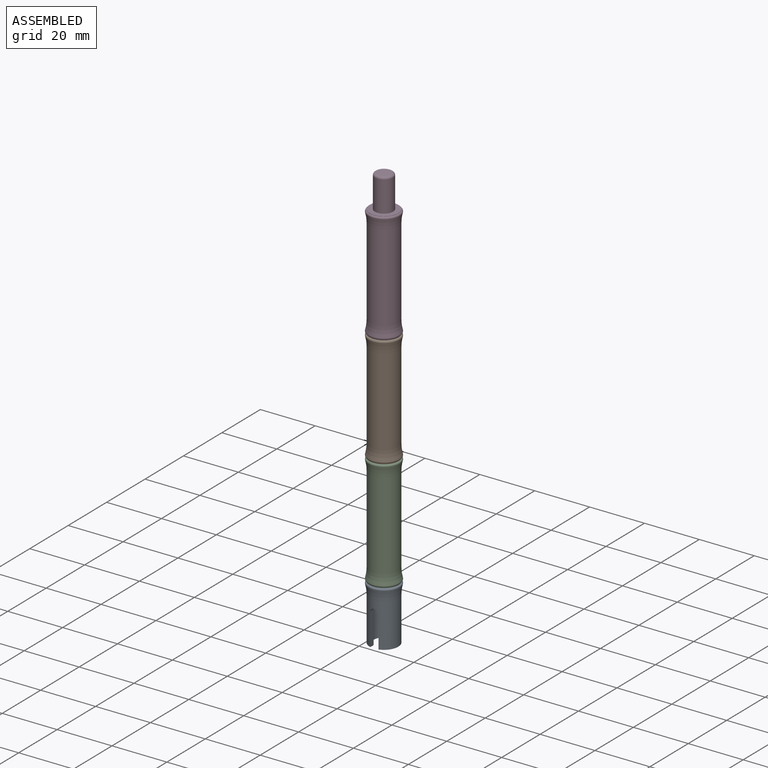
[diagram: assembled view]
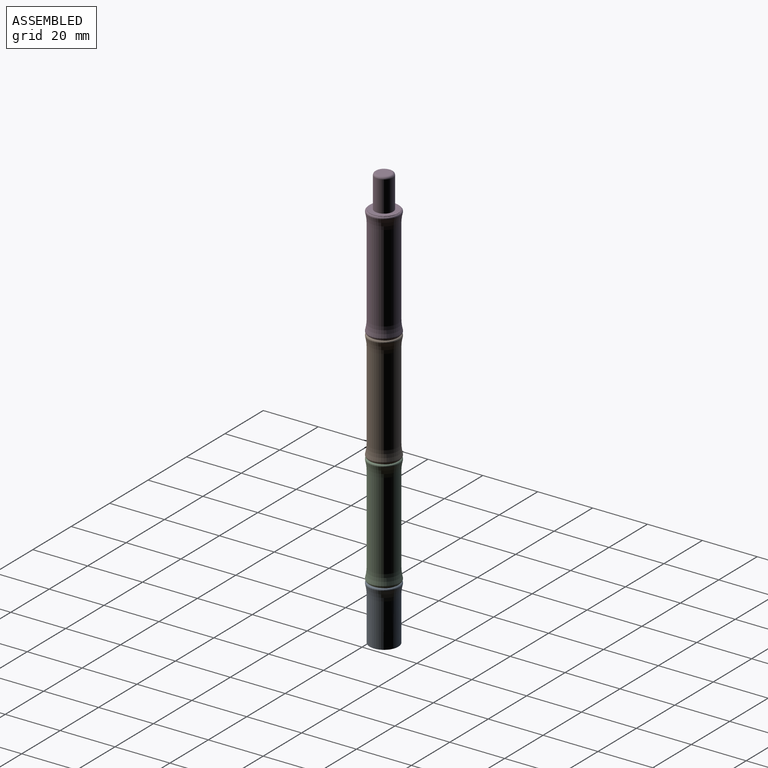
[diagram: assembled view, second angle]
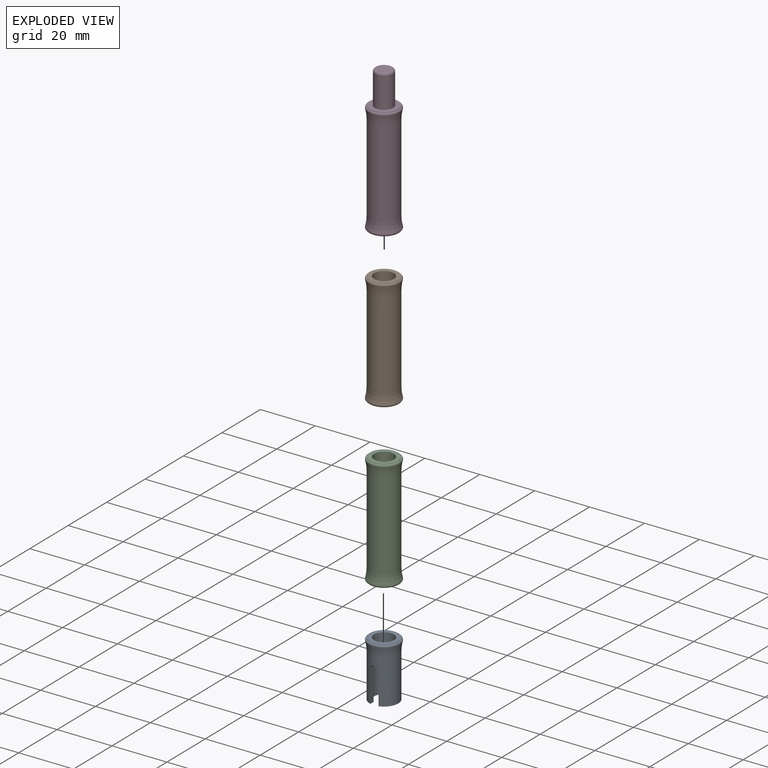
[diagram: exploded view]
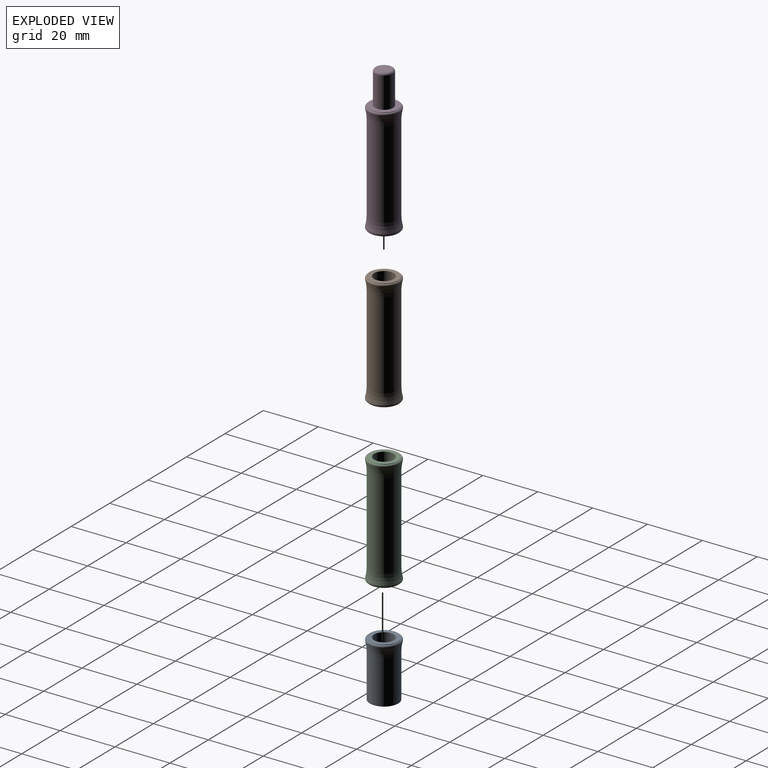
[diagram: exploded view, second angle]
ASSEMBLY  parts=4 mates=3
PART A: 12 faces, bbox 20x20x25.8 mm
  f0: plane 10.4x10.19mm, normal (0,0,-1), area 39.4mm2, adj f1,f2,f7,f8
  f1: cylinder r=3.6mm len=20.4mm, axis (0,0,1), area 423.3mm2, adj f0,f6,f7,f8,f9,f10,f11
  f2: cylinder r=5.2mm len=15.9mm, axis (0,0,1), area 481.9mm2, adj f0,f3,f7,f8,f9,f10,f11
  f3: torus R=19.2mm, axis (0,0,1), area 123.8mm2, adj f2,f4
  f4: torus R=5.1mm, axis (0,0,1), area 34.9mm2, adj f3,f5
  f5: cylinder r=5.2mm len=10.4mm, axis (0,0,1), area 3.9mm2, adj f4,f6
  f6: plane 10.4x10.4mm, normal (0,0,1), area 44.2mm2, adj f1,f5
  f7: plane 11.8x1.7mm, normal (1,0,0), area 20.1mm2, adj f0,f1,f2,f11
  f8: plane 11.8x1.7mm, normal (-1,0,0), area 20.1mm2, adj f0,f1,f2,f10
  f9: plane 1.61x0.56mm, normal (0,0,-1), area 0.9mm2, adj f1,f2,f10,f11
  f10: bspline ~2.1x1.2mm, area 2.9mm2, adj f1,f2,f8,f9
  f11: bspline ~2.1x1.2mm, area 2.9mm2, adj f1,f2,f7,f9
PART B: 10 faces, bbox 20x20x51.7 mm
  f0: cylinder r=3.6mm len=40.8mm, axis (0,0,1), area 922.9mm2, adj f5,f9
  f1: cylinder r=5.2mm len=31.8mm, axis (0,0,1), area 1038.9mm2, adj f2,f6
  f2: torus R=19.2mm, axis (0,0,1), area 123.8mm2, adj f1,f3
  f3: torus R=5.1mm, axis (0,0,1), area 34.9mm2, adj f2,f4
  f4: cylinder r=5.2mm len=10.4mm, axis (0,0,1), area 3.9mm2, adj f3,f5
  f5: plane 10.4x10.4mm, normal (0,0,1), area 44.2mm2, adj f0,f4
  f6: torus R=19.2mm, axis (0,0,-1), area 123.8mm2, adj f1,f7
  f7: torus R=5.1mm, axis (0,0,-1), area 34.9mm2, adj f6,f8
  f8: cylinder r=5.2mm len=10.4mm, axis (0,0,-1), area 3.9mm2, adj f7,f9
  f9: plane 10.4x10.4mm, normal (0,0,-1), area 44.2mm2, adj f0,f8
PART C: same geometry as B
PART D: 15 faces, bbox 20.1x20.1x58.2 mm
  f0: cylinder r=3.6mm len=21.6mm, axis (0,0,1), area 488.6mm2, adj f9,f14
  f1: cylinder r=5.2mm len=31.8mm, axis (0,0,1), area 1038.9mm2, adj f2,f6
  f2: torus R=19.2mm, axis (0,0,1), area 123.8mm2, adj f1,f3
  f3: torus R=5.1mm, axis (0,0,1), area 34.9mm2, adj f2,f4
  f4: cylinder r=5.2mm len=10.4mm, axis (0,0,1), area 3.9mm2, adj f3,f5
  f5: plane 10.4x10.4mm, normal (0,0,1), area 50.3mm2, adj f4,f11
  f6: torus R=19.2mm, axis (0,0,-1), area 123.8mm2, adj f1,f7
  f7: torus R=5.1mm, axis (0,0,-1), area 34.9mm2, adj f6,f8
  f8: cylinder r=5.2mm len=10.4mm, axis (0,0,-1), area 3.9mm2, adj f7,f9
  f9: plane 10.4x10.4mm, normal (0,0,-1), area 44.2mm2, adj f0,f8
  f10: plane 0.8x0.8mm, normal (0,0,-1), area 0.5mm2, adj f14
  f11: cylinder r=3.32mm len=11.2mm, axis (0,0,-1), area 233.6mm2, adj f5,f13
  f12: plane 5.04x5.04mm, normal (0,0,1), area 20mm2, adj f13
  f13: torus R=2.52mm, axis (0,0,1), area 23.9mm2, adj f11,f12
  f14: bspline ~7.2x7.2mm, area 68.2mm2, adj f0,f10
PLACE A t=(-9.46,-10.59,4.01)mm
PLACE B t=(-9.46,-10.59,85.61)mm
PLACE C t=(-9.46,-10.59,44.81)mm
PLACE D t=(-9.46,-10.59,126.41)mm
MATE fastened D.f0 <-> B.f0  axis (0,0,1) through (-9.46,-10.59,85.61)mm
MATE fastened B.f0 <-> C.f0  axis (0,0,1) through (-9.46,-10.59,44.81)mm
MATE fastened C.f0 <-> A.f1  axis (0,0,1) through (-9.46,-10.59,4.01)mm
